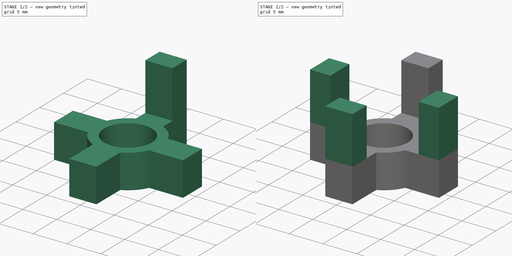
[diagram: build sequence overview — one tinted view per stage of 2, left to right]
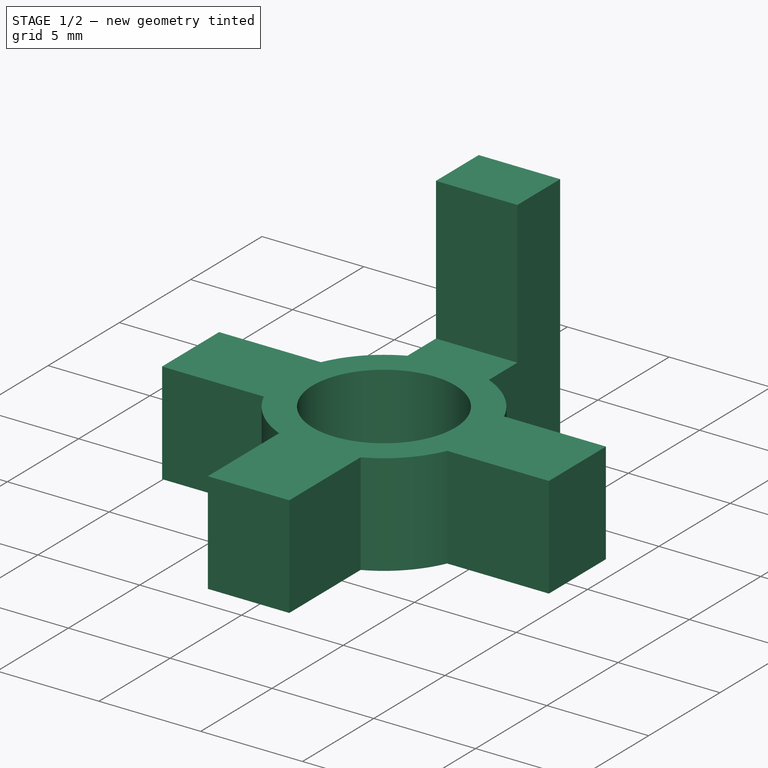
[diagram: stage 1 of 2 — iso view after this stage's code; geometry added in this stage tinted green]
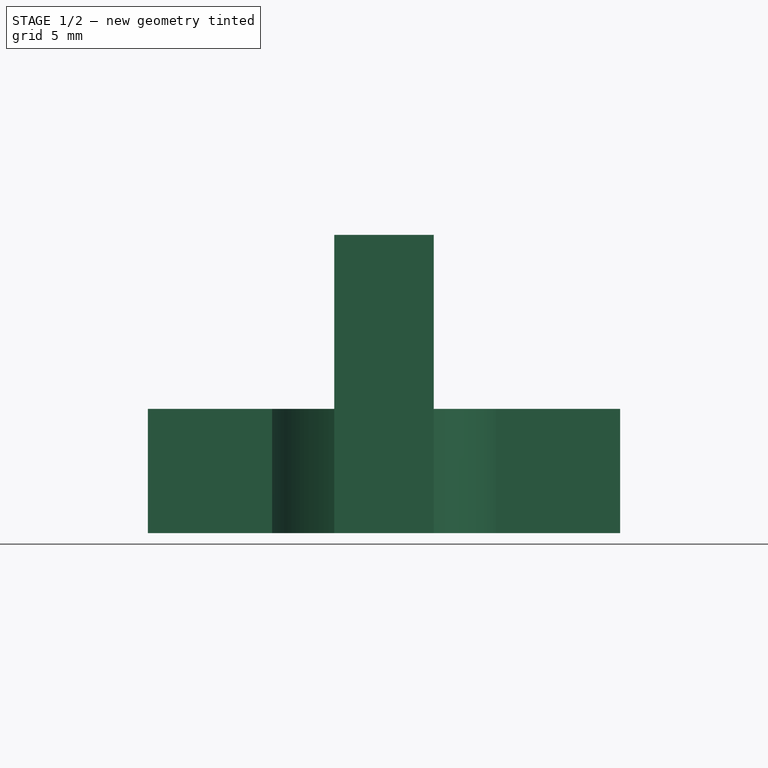
[diagram: stage 1 of 2 — front view after this stage's code; geometry added in this stage tinted green]
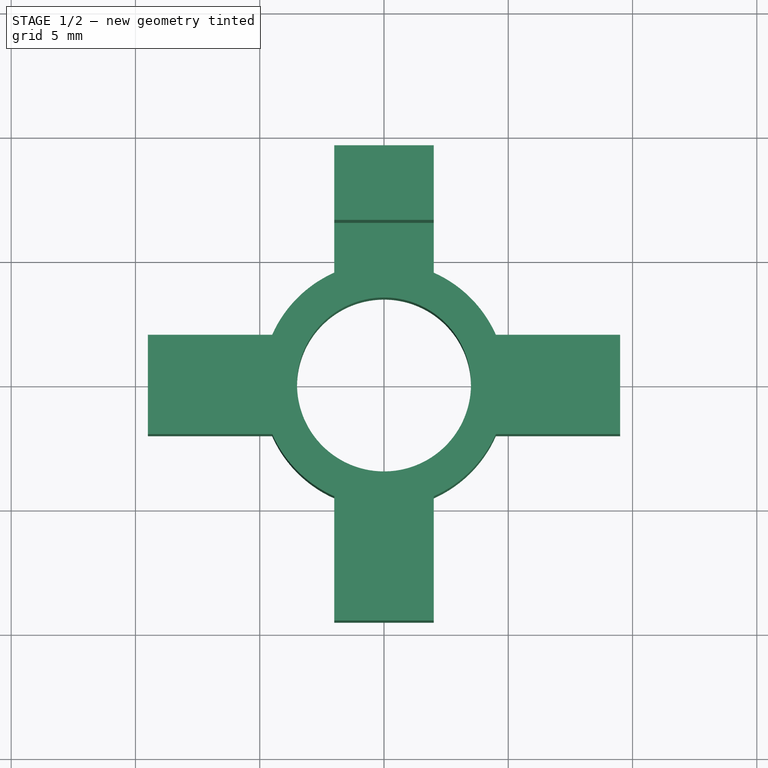
[diagram: stage 1 of 2 — top view after this stage's code; geometry added in this stage tinted green]
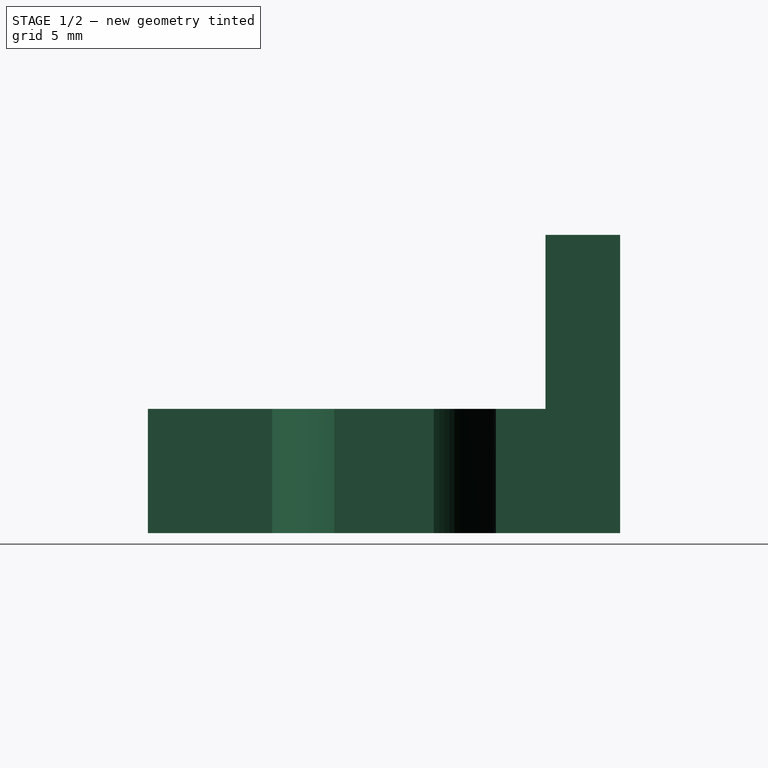
[diagram: stage 1 of 2 — right view after this stage's code; geometry added in this stage tinted green]
FCSTD DOCUMENT  (FreeCAD 0.21R33771 (Git))
Label: windowsill-for-panelmount-sma Rev B
License: All rights reserved
LicenseURL: https://en.wikipedia.org/wiki/All_rights_reserved
objects: Sketcher::SketchObject×2, PartDesign::Pad×2, PartDesign::PolarPattern×1, PartDesign::Body×1
note: 8 computed .brp shape members not serialized (recipe doc carries the construction recipe); baked Part::Feature solids carry a one-line shape summary decoded from their .brp

FEATURE [Sketcher::SketchObject] Sketch001  label="Fingers Profile"
  FullyConstrained = true
  MapMode = 5
  Support = -> [XY_Plane]
  sketch-geometry (6):
    g0: LineSegment StartX=-2 StartY=9.5 StartZ=0 EndX=2 EndY=9.5 EndZ=0
    g1: LineSegment StartX=2 StartY=9.5 StartZ=0 EndX=2 EndY=6.5 EndZ=0
    g2: LineSegment StartX=2 StartY=6.5 StartZ=0 EndX=-2 EndY=6.5 EndZ=0
    g3: LineSegment StartX=-2 StartY=6.5 StartZ=0 EndX=-2 EndY=9.5 EndZ=0
    g4: LineSegment StartX=-2 StartY=6.5 StartZ=0 EndX=-2e-16 EndY=0 EndZ=0
    g5: LineSegment StartX=2 StartY=6.5 StartZ=0 EndX=-4e-16 EndY=0 EndZ=0
  constraints (16):
    c: Coincident(g0,g1)
    c: Coincident(g1,g2)
    c: Coincident(g2,g3)
    c: Coincident(g3,g0)
    c: Horizontal(g0)
    c: Horizontal(g2)
    c: Vertical(g1)
    c: Vertical(g3)
    c: DistanceY(g1,g1) = 3
    c: DistanceX(g0,g0) = 4
    c: Coincident(g4,g2)
    c: Coincident(g4,g-1)
    c: Coincident(g5,g1)
    c: Coincident(g5,g4)
    c: Equal(g5,g4)
    c: DistanceY(g4,g1) = 6.5
FEATURE [Sketcher::SketchObject] Sketch  label="Base Profile"
  ExternalGeometry = -> [Sketch001]
  FullyConstrained = true
  MapMode = 5
  Support = -> [XY_Plane]
  sketch-geometry (21):
    g0: Circle CenterX=0 CenterY=0 CenterZ=0 NormalX=0 NormalY=0 NormalZ=1 AngleXU=0 Radius=3.5
    g1: LineSegment StartX=-9.5 StartY=2 StartZ=0 EndX=-9.5 EndY=-2 EndZ=0
    g2: LineSegment StartX=-2 StartY=-9.5 StartZ=0 EndX=2 EndY=-9.5 EndZ=0
    g3: LineSegment StartX=9.5 StartY=-2 StartZ=0 EndX=9.5 EndY=2 EndZ=0
    g4: LineSegment StartX=2 StartY=9.5 StartZ=0 EndX=-2 EndY=9.5 EndZ=0
    g5: LineSegment StartX=-2 StartY=9.5 StartZ=0 EndX=-2e-16 EndY=0 EndZ=0
    g6: LineSegment StartX=0 StartY=0 StartZ=0 EndX=2 EndY=-9.5 EndZ=0
    g7: LineSegment StartX=9.5 StartY=2 StartZ=0 EndX=0 EndY=-2e-16 EndZ=0
    g8: LineSegment StartX=2 StartY=9.5 StartZ=0 EndX=2 EndY=4.5 EndZ=0
    g9: LineSegment StartX=-9.5 StartY=2 StartZ=0 EndX=-4.5 EndY=2 EndZ=0
    g10: LineSegment StartX=-2 StartY=9.5 StartZ=0 EndX=-2 EndY=4.5 EndZ=0
    g11: LineSegment StartX=-9.5 StartY=-2 StartZ=0 EndX=-4.5 EndY=-2 EndZ=0
    g12: LineSegment StartX=9.5 StartY=2 StartZ=0 EndX=4.5 EndY=2 EndZ=0
    g13: LineSegment StartX=9.5 StartY=-2 StartZ=0 EndX=4.5 EndY=-2 EndZ=0
    g14: LineSegment StartX=2 StartY=-9.5 StartZ=0 EndX=2 EndY=-4.5 EndZ=0
    g15: LineSegment StartX=-2 StartY=-9.5 StartZ=0 EndX=-2 EndY=-4.5 EndZ=0
    g16: LineSegment StartX=0 StartY=0 StartZ=0 EndX=-9.5 EndY=-2 EndZ=0
    g17: ArcOfCircle CenterX=0 CenterY=0 CenterZ=0 NormalX=0 NormalY=0 NormalZ=1 AngleXU=0 Radius=4.92443 StartAngle=1.98902 EndAngle=2.72337
    g18: ArcOfCircle CenterX=0 CenterY=0 CenterZ=0 NormalX=0 NormalY=0 NormalZ=1 AngleXU=0 Radius=4.92443 StartAngle=3.55982 EndAngle=4.29416
    g19: ArcOfCircle CenterX=0 CenterY=0 CenterZ=0 NormalX=0 NormalY=0 NormalZ=1 AngleXU=0 Radius=4.92443 StartAngle=5.13061 EndAngle=5.86496
    g20: ArcOfCircle CenterX=0 CenterY=0 CenterZ=0 NormalX=0 NormalY=0 NormalZ=1 AngleXU=0 Radius=4.92443 StartAngle=0.418224 EndAngle=1.15257
  constraints (56):
    c: Coincident(g0,g-1)
    c: Diameter(g0) = 7
    c: Vertical(g1)
    c: Horizontal(g2)
    c: Vertical(g3)
    c: Horizontal(g3,g1)
    c: Horizontal(g3,g1)
    c: Vertical(g-3,g2)
    c: Vertical(g-3,g2)
    c: Equal(g4,g1)
    c: Coincident(g5,g0)
    c: Coincident(g6,g0)
    c: Coincident(g6,g2)
    c: Equal(g5,g6)
    c: Coincident(g7,g3)
    c: Coincident(g7,g0)
    c: Equal(g5,g7)
    c: Coincident(g8,g4)
    c: Vertical(g8)
    c: Coincident(g4,g5)
    c: Coincident(g-3,g4)
    c: Coincident(g-3,g4)
    c: Coincident(g9,g1)
    c: Horizontal(g9)
    c: Coincident(g10,g4)
    c: Vertical(g10)
    c: Coincident(g11,g1)
    c: Horizontal(g11)
    c: Coincident(g12,g3)
    c: Horizontal(g12)
    c: Coincident(g13,g3)
    c: Horizontal(g13)
    c: Coincident(g14,g2)
    c: Vertical(g14)
    c: Coincident(g15,g2)
    c: Vertical(g15)
    c: Angle(g7,g5) = 1.5708
    c: Coincident(g16,g0)
    c: Coincident(g16,g1)
    c: Equal(g16,g7)
    c: Coincident(g17,g10)
    c: Coincident(g9,g17)
    c: Coincident(g18,g0)
    c: Coincident(g18,g11)
    c: Coincident(g18,g15)
    c: Coincident(g19,g0)
    c: Coincident(g19,g14)
    c: Coincident(g19,g13)
    c: Coincident(g20,g0)
    c: Coincident(g20,g12)
    c: Coincident(g20,g8)
    c: Equal(g12,g13)
    c: Equal(g9,g12)
    c: Equal(g9,g11)
    c: Coincident(g17,g0)
    c: DistanceX(g0,g12) = 4.5
FEATURE [PartDesign::Pad] Pad  label="Base"
  Direction = (0,0,1)
  Length = 5
  Length2 = 10
  Profile = -> Sketch
  ReferenceAxis = -> Sketch [N_Axis]
  Reversed = true
  Type = 0
FEATURE [PartDesign::Pad] Pad001  label="Fingers"
  BaseFeature = -> Pad
  Direction = (0,0,1)
  Length = 7
  Length2 = 10
  Profile = -> Sketch001
  ReferenceAxis = -> Sketch001 [N_Axis]
  Type = 0
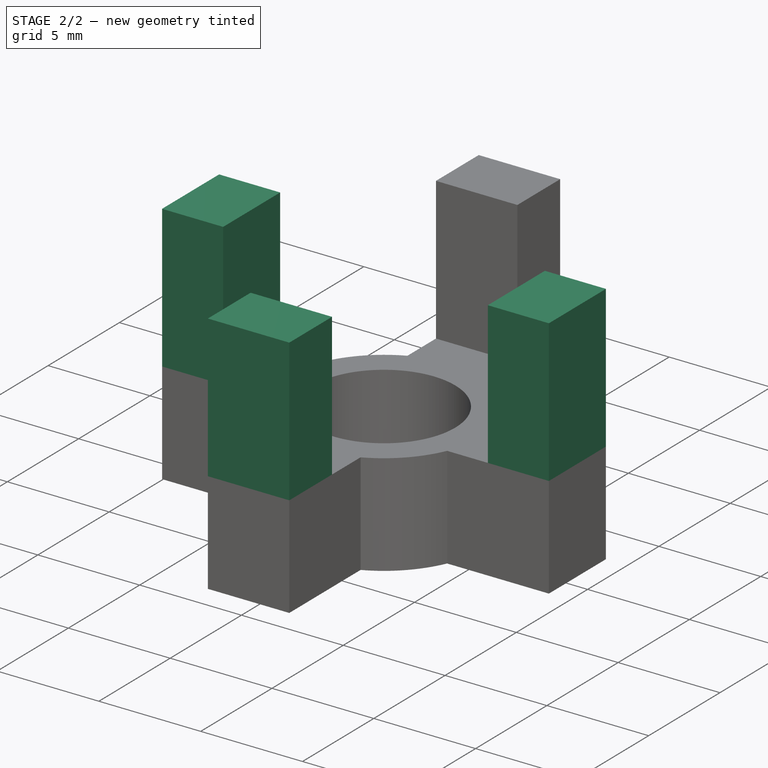
[diagram: stage 2 of 2 — iso view after this stage's code; geometry added in this stage tinted green]
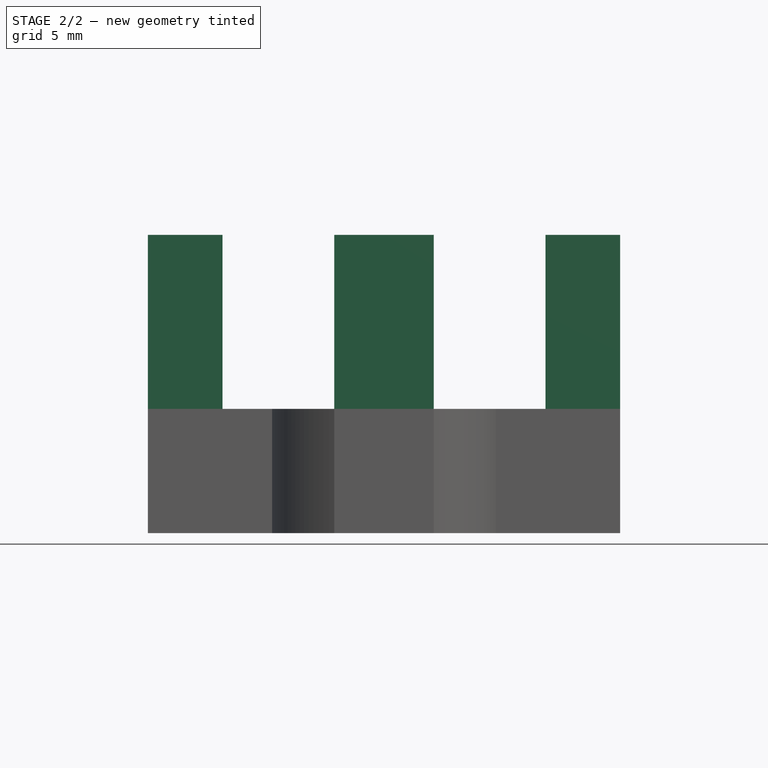
[diagram: stage 2 of 2 — front view after this stage's code; geometry added in this stage tinted green]
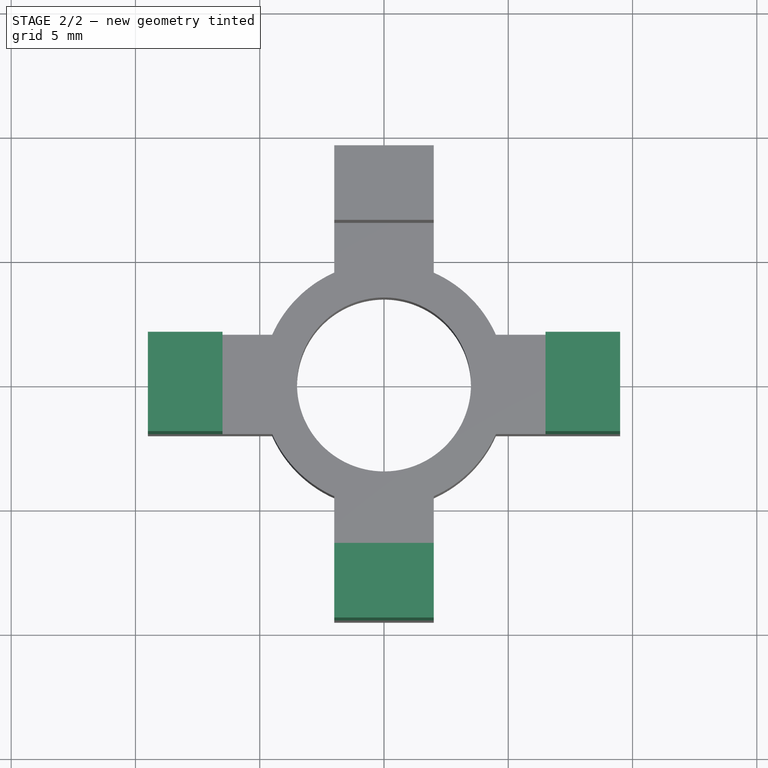
[diagram: stage 2 of 2 — top view after this stage's code; geometry added in this stage tinted green]
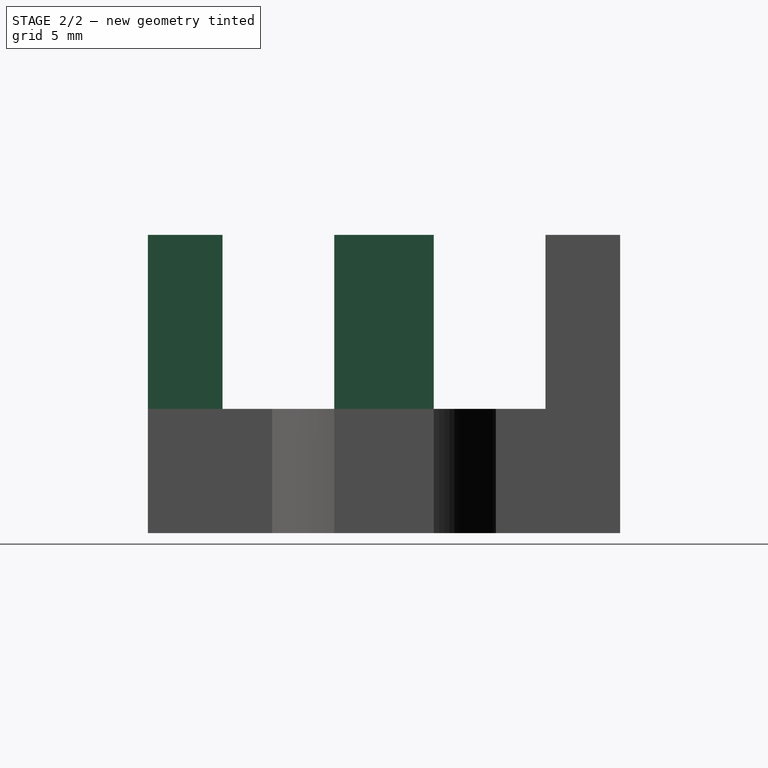
[diagram: stage 2 of 2 — right view after this stage's code; geometry added in this stage tinted green]
FEATURE [PartDesign::PolarPattern] PolarPattern
  Angle = 360
  Axis = -> Sketch001 [N_Axis]
  BaseFeature = -> Pad001
  Occurrences = 4
  Originals = -> [Pad001]
FEATURE [PartDesign::Body] Body
  Group = -> [Sketch,Pad,Sketch001,Pad001,PolarPattern]
  Origin = -> Origin
  Tip = -> PolarPattern
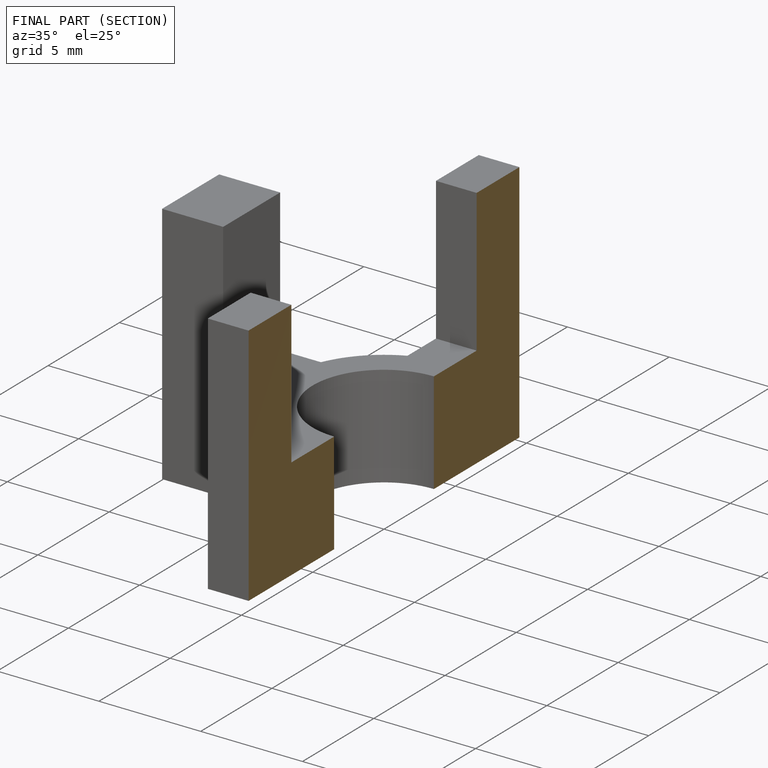
[diagram: finished part — half-section view (interior)]
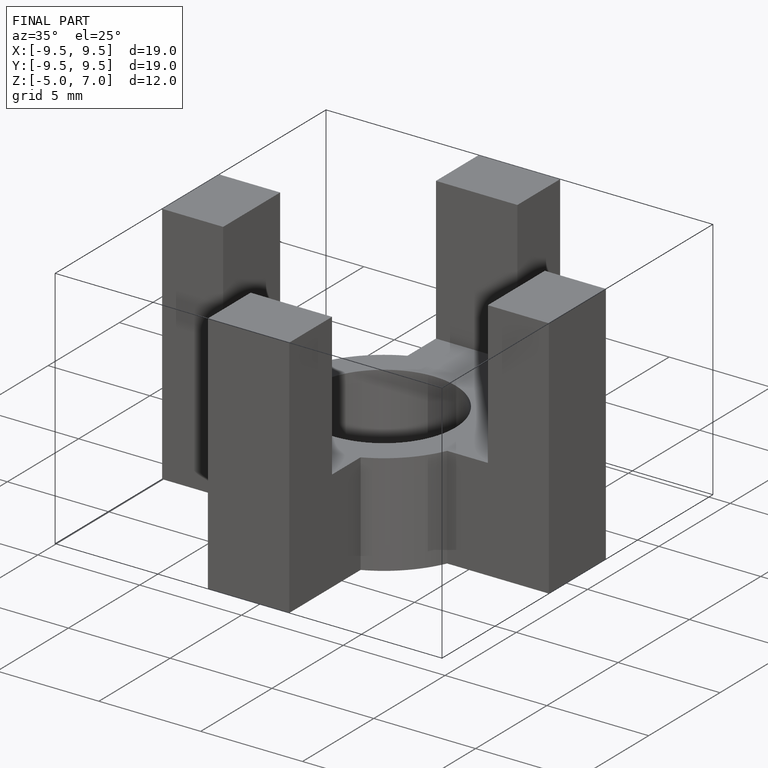
[diagram: finished part — iso view with bounding-box wireframe]
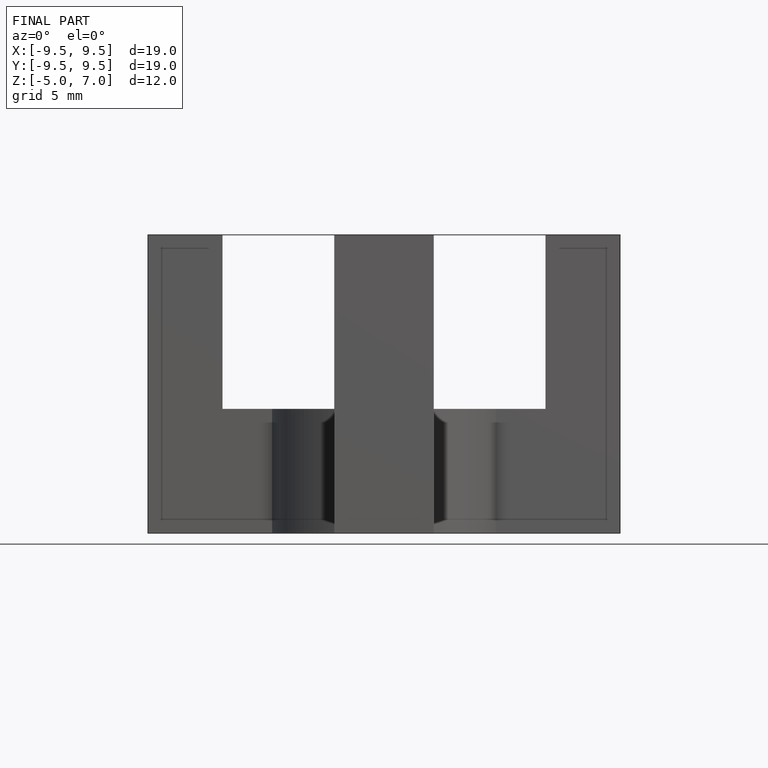
[diagram: finished part — front view with bounding-box wireframe]
